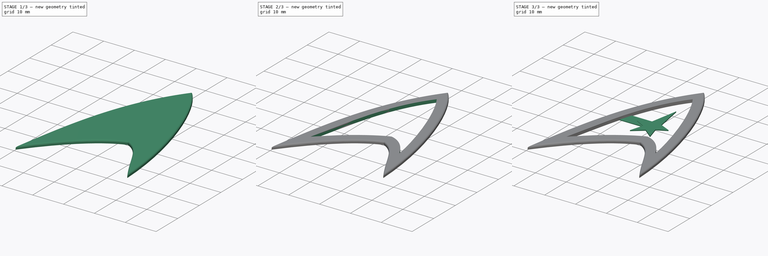
[diagram: build sequence overview — one tinted view per stage of 3, left to right]
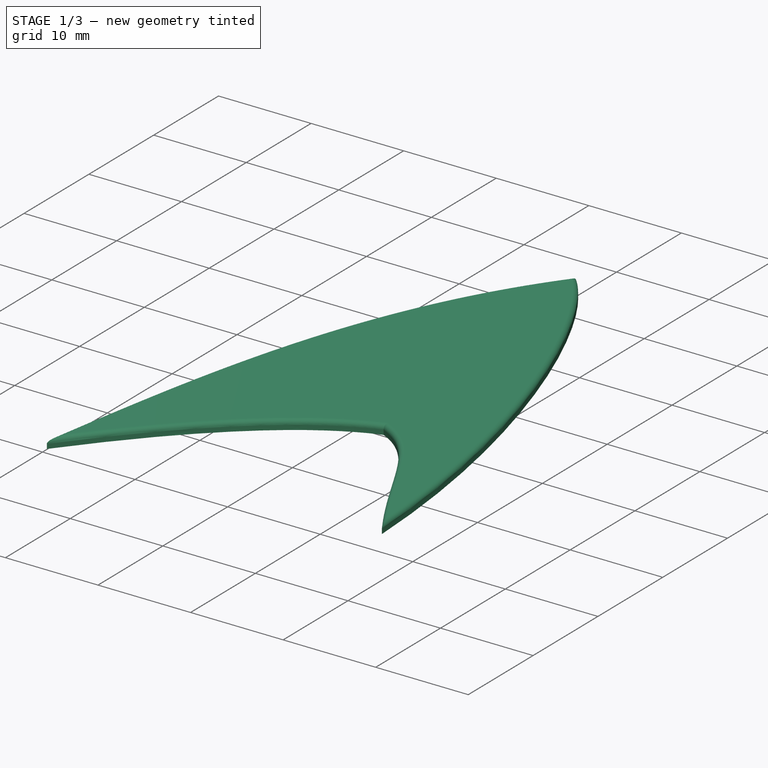
[diagram: stage 1 of 3 — iso view after this stage's code; geometry added in this stage tinted green]
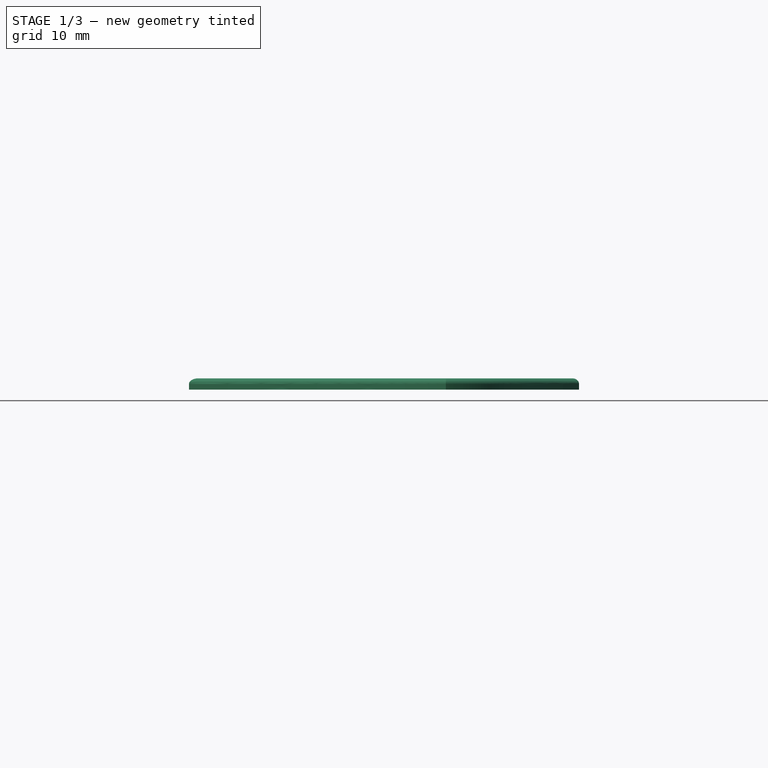
[diagram: stage 1 of 3 — front view after this stage's code; geometry added in this stage tinted green]
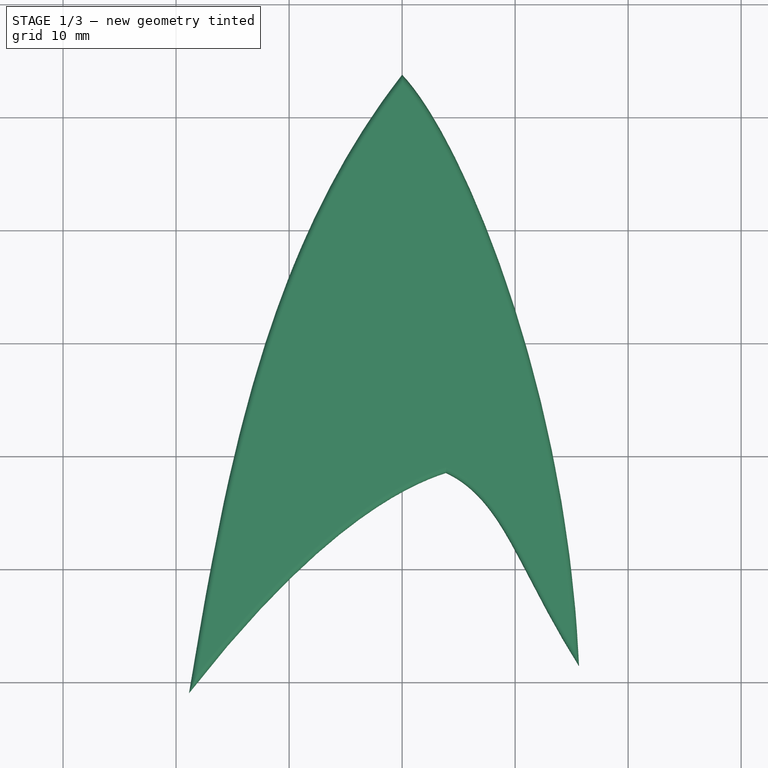
[diagram: stage 1 of 3 — top view after this stage's code; geometry added in this stage tinted green]
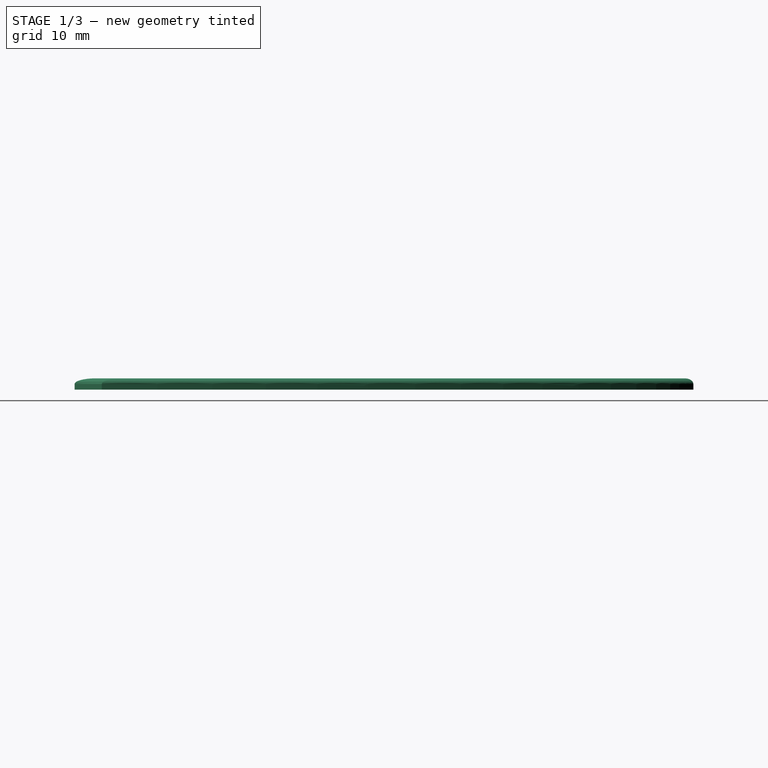
[diagram: stage 1 of 3 — right view after this stage's code; geometry added in this stage tinted green]
FCSTD DOCUMENT  (FreeCAD 0.19R24267 +99 (Git))
Label: StarTrekBookmark
License: All rights reserved
LicenseURL: http://en.wikipedia.org/wiki/All_rights_reserved
objects: Sketcher::SketchObject×4, PartDesign::Pad×3, PartDesign::Fillet×1, PartDesign::Pocket×1, PartDesign::Body×1
note: 15 computed .brp shape members not serialized (recipe doc carries the construction recipe); baked Part::Feature solids carry a one-line shape summary decoded from their .brp

FEATURE [Sketcher::SketchObject] Sketch001  label="OuterPerimeter"
  FullyConstrained = true
  MapMode = 5
  Support = -> [XY_Plane]
  sketch-geometry (28):
    g0-g3: Circle x4 (B-spline internal-alignment scaffolding for g4; pole/knot coordinates omitted)
    g4: BSplineCurve PolesCount=4 KnotsCount=2 Degree=3 IsPeriodic=0
    g5: GeomPoint X=0 Y=43.7882 Z=0
    g6: GeomPoint X=-18.8589 Y=-10.9564 Z=0
    g7-g10: Circle x4 (B-spline internal-alignment scaffolding for g11; pole/knot coordinates omitted)
    g11: BSplineCurve PolesCount=4 KnotsCount=2 Degree=3 IsPeriodic=0
    g12: GeomPoint X=-18.8589 Y=-10.9564 Z=0
    g13: GeomPoint X=3.87313 Y=8.54312 Z=0
    g14-g17: Circle x4 (B-spline internal-alignment scaffolding for g18; pole/knot coordinates omitted)
    g18: BSplineCurve PolesCount=4 KnotsCount=2 Degree=3 IsPeriodic=0
    g19: GeomPoint X=3.87313 Y=8.54312 Z=0
    g20: GeomPoint X=15.6562 Y=-8.55802 Z=0
    g21-g24: Circle x4 (B-spline internal-alignment scaffolding for g25; pole/knot coordinates omitted)
    g25: BSplineCurve PolesCount=4 KnotsCount=2 Degree=3 IsPeriodic=0
    g26: GeomPoint X=15.6562 Y=-8.55802 Z=0
    g27: GeomPoint X=0 Y=43.7882 Z=0
  constraints (20):
    c: InternalAlignment(g0-g3 -> g4) x4
    c: InternalAlignment(g5,g4)
    c: InternalAlignment(g6,g4)
    c: Coincident(g11,g4)
    c: InternalAlignment(g7-g10 -> g11) x4
    c: InternalAlignment(g12,g11)
    c: InternalAlignment(g13,g11)
    c: Coincident(g18,g11)
    c: InternalAlignment(g14-g17 -> g18) x4
    c: InternalAlignment(g19,g18)
    c: InternalAlignment(g20,g18)
    c: Coincident(g25,g18)
    c: Coincident(g25,g4)
    c: InternalAlignment(g21-g24 -> g25) x4
    c: InternalAlignment(g26,g25)
    c: InternalAlignment(g27,g25)
    c: Block(g4)
    c: Block(g11)
    c: Block(g18)
    c: Block(g25)
FEATURE [Sketcher::SketchObject] Sketch  label="InnerPerimeter"
  FullyConstrained = true
  MapMode = 5
  Support = -> [XY_Plane]
  sketch-geometry (28):
    g0-g3: Circle x4 (B-spline internal-alignment scaffolding for g4; pole/knot coordinates omitted)
    g4: BSplineCurve PolesCount=4 KnotsCount=2 Degree=3 IsPeriodic=0
    g5: GeomPoint X=0.119224 Y=38.3659 Z=0
    g6: GeomPoint X=-13.8537 Y=-0.111724 Z=0
    g7-g10: Circle x4 (B-spline internal-alignment scaffolding for g11; pole/knot coordinates omitted)
    g11: BSplineCurve PolesCount=4 KnotsCount=2 Degree=3 IsPeriodic=0
    g12: GeomPoint X=-13.8537 Y=-0.111724 Z=0
    g13: GeomPoint X=3.76886 Y=12.297 Z=0
    g14-g17: Circle x4 (B-spline internal-alignment scaffolding for g18; pole/knot coordinates omitted)
    g18: BSplineCurve PolesCount=4 KnotsCount=2 Degree=3 IsPeriodic=0
    g19: GeomPoint X=3.76886 Y=12.297 Z=0
    g20: GeomPoint X=11.475 Y=4.82406 Z=0
    g21-g24: Circle x4 (B-spline internal-alignment scaffolding for g25; pole/knot coordinates omitted)
    g25: BSplineCurve PolesCount=4 KnotsCount=2 Degree=3 IsPeriodic=0
    g26: GeomPoint X=11.475 Y=4.82406 Z=0
    g27: GeomPoint X=0.119224 Y=38.3659 Z=0
  constraints (20):
    c: InternalAlignment(g0-g3 -> g4) x4
    c: InternalAlignment(g5,g4)
    c: InternalAlignment(g6,g4)
    c: Coincident(g11,g4)
    c: InternalAlignment(g7-g10 -> g11) x4
    c: InternalAlignment(g12,g11)
    c: InternalAlignment(g13,g11)
    c: Coincident(g18,g11)
    c: InternalAlignment(g14-g17 -> g18) x4
    c: InternalAlignment(g19,g18)
    c: InternalAlignment(g20,g18)
    c: Coincident(g25,g18)
    c: Coincident(g25,g4)
    c: InternalAlignment(g21-g24 -> g25) x4
    c: InternalAlignment(g26,g25)
    c: InternalAlignment(g27,g25)
    c: Block(g4)
    c: Block(g11)
    c: Block(g18)
    c: Block(g25)
FEATURE [PartDesign::Pad] Pad
  Direction = (1,1,1)
  Length = 1
  Length2 = 100
  Profile = -> Sketch001
  Refine = true
  Type = 0
FEATURE [PartDesign::Fillet] Fillet
  Base = -> Pad [Face6]
  BaseFeature = -> Pad
  Radius = 0.5
  Refine = true
  SupportTransform = false
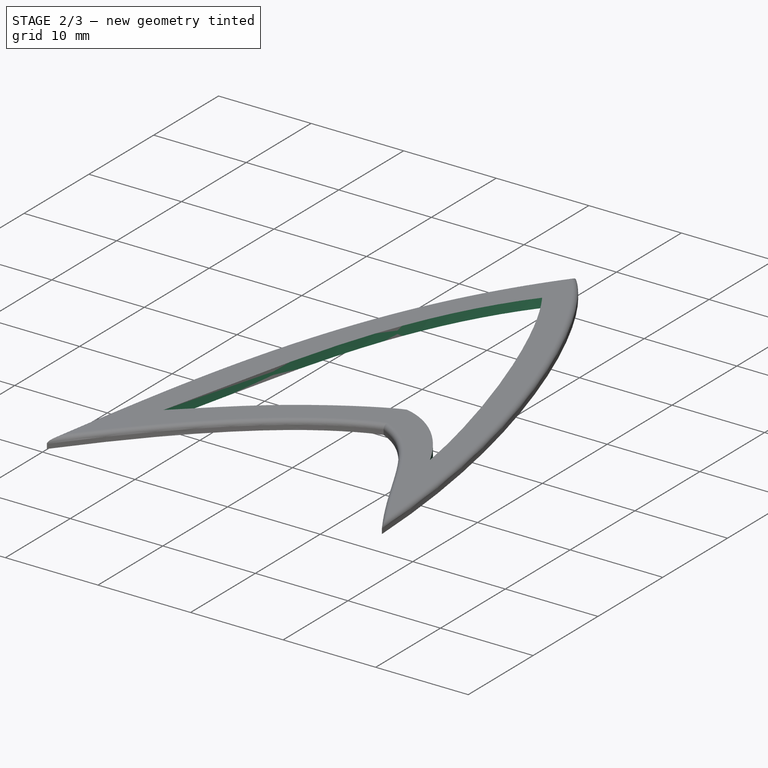
[diagram: stage 2 of 3 — iso view after this stage's code; geometry added in this stage tinted green]
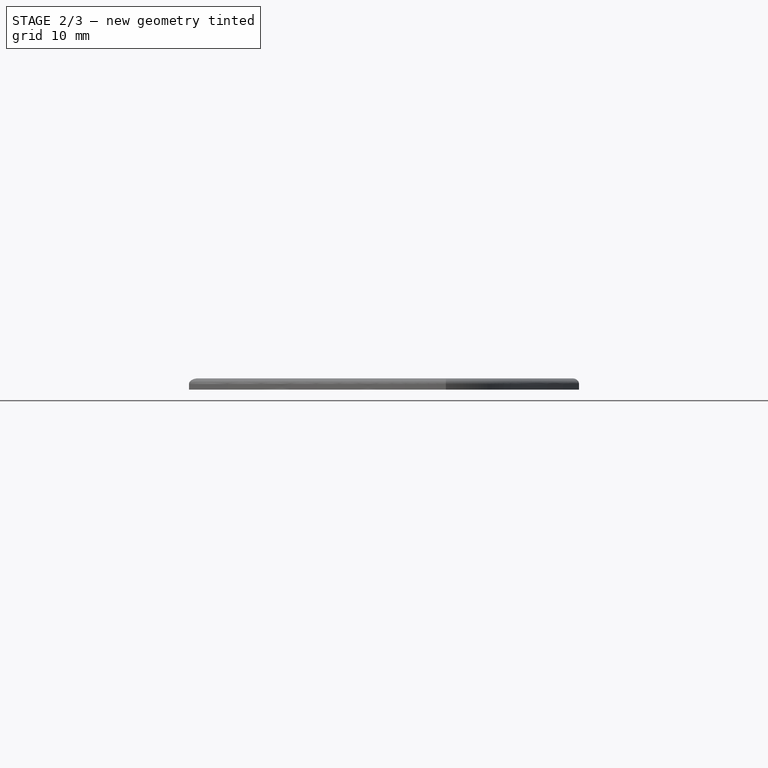
[diagram: stage 2 of 3 — front view after this stage's code; geometry added in this stage tinted green]
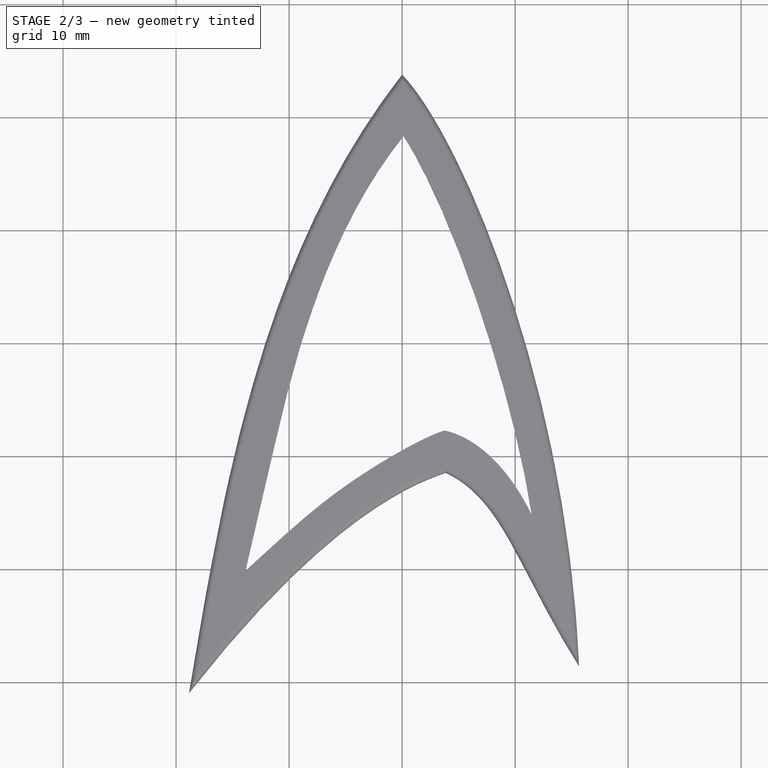
[diagram: stage 2 of 3 — top view after this stage's code; geometry added in this stage tinted green]
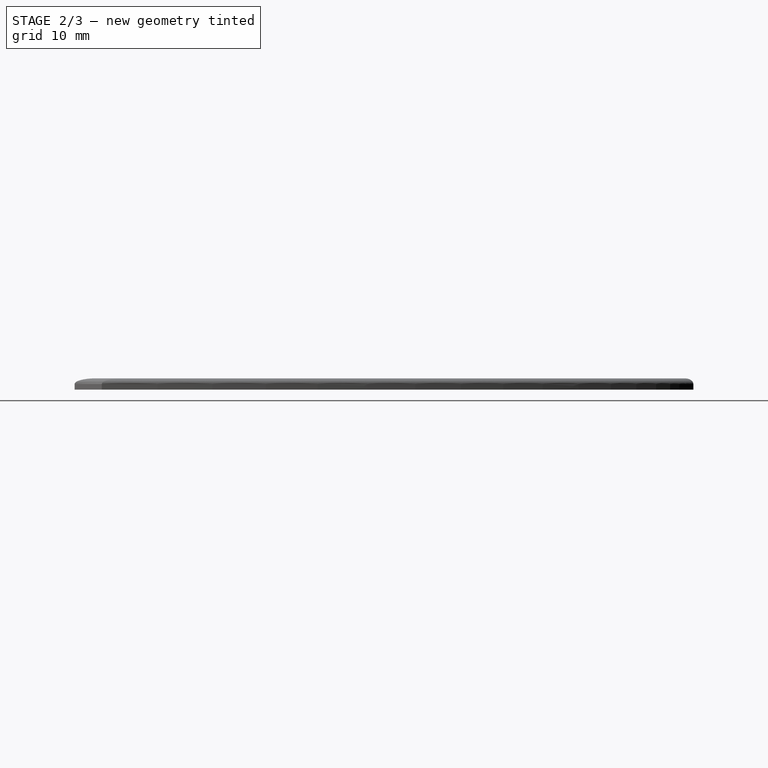
[diagram: stage 2 of 3 — right view after this stage's code; geometry added in this stage tinted green]
FEATURE [PartDesign::Pocket] Pocket
  BaseFeature = -> Fillet
  Length = 0
  Length2 = 100
  Profile = -> Sketch
  Refine = true
  Type = 3
  UpToFace = -> Fillet [Face8]
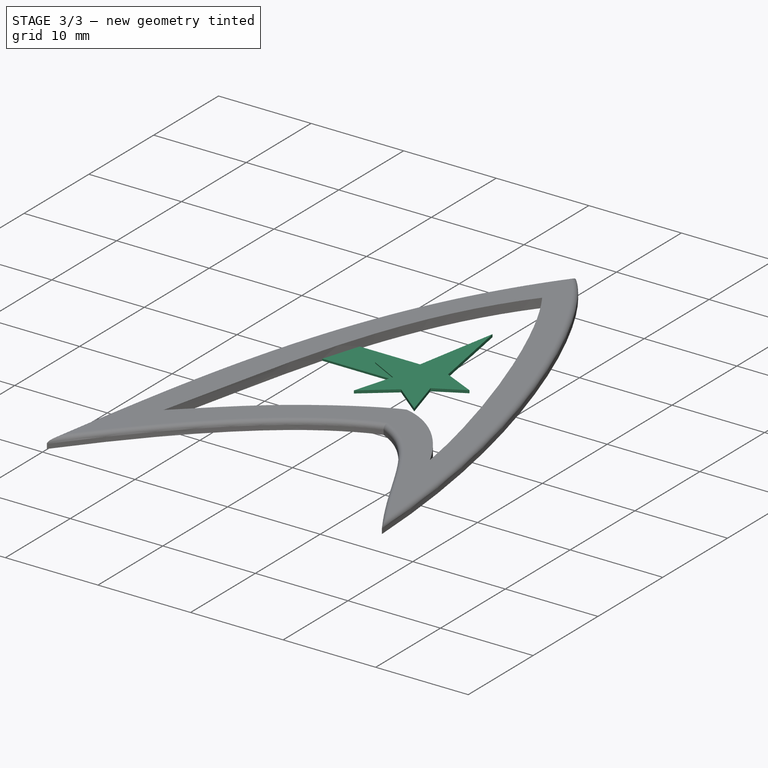
[diagram: stage 3 of 3 — iso view after this stage's code; geometry added in this stage tinted green]
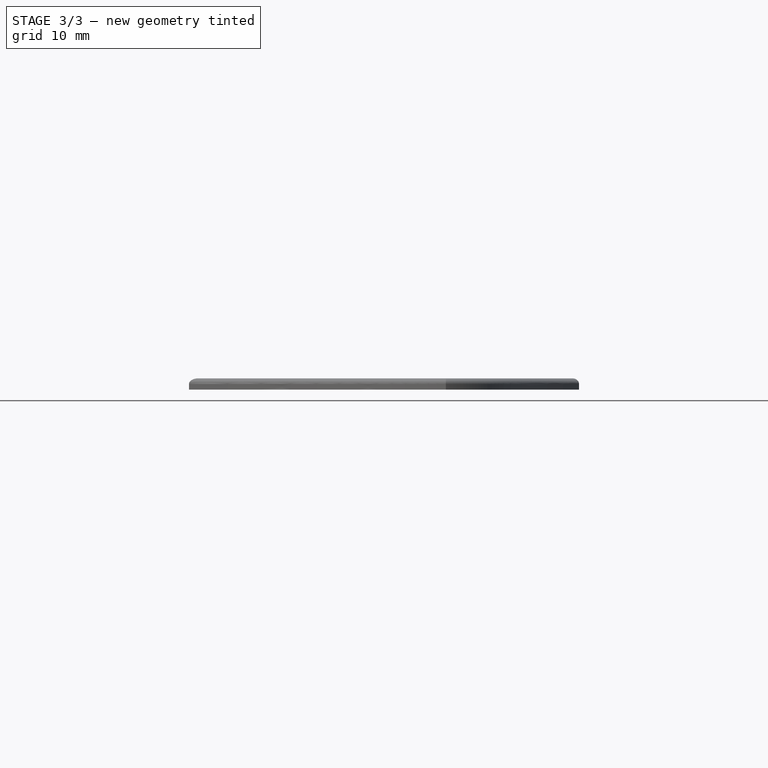
[diagram: stage 3 of 3 — front view after this stage's code; geometry added in this stage tinted green]
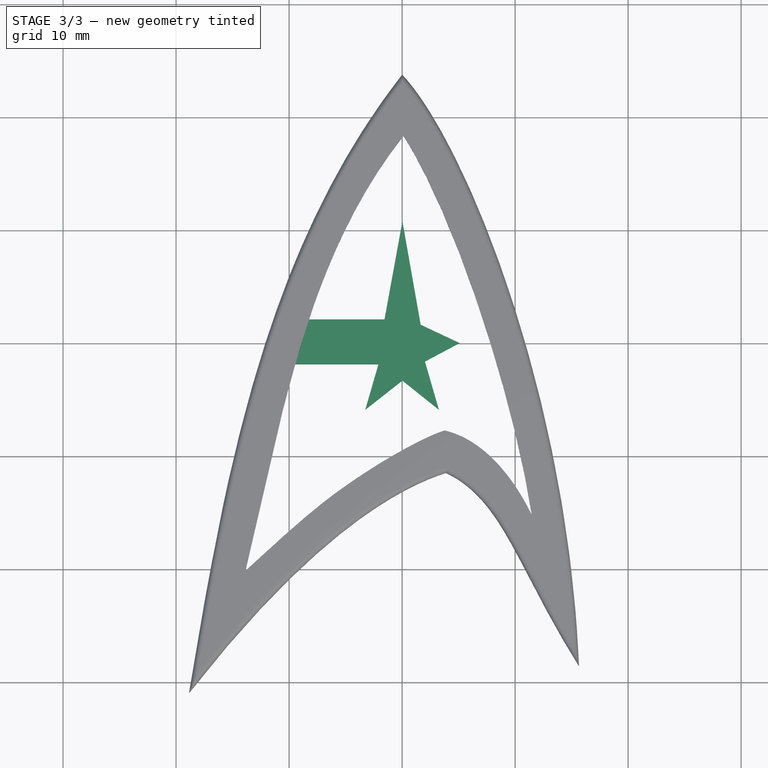
[diagram: stage 3 of 3 — top view after this stage's code; geometry added in this stage tinted green]
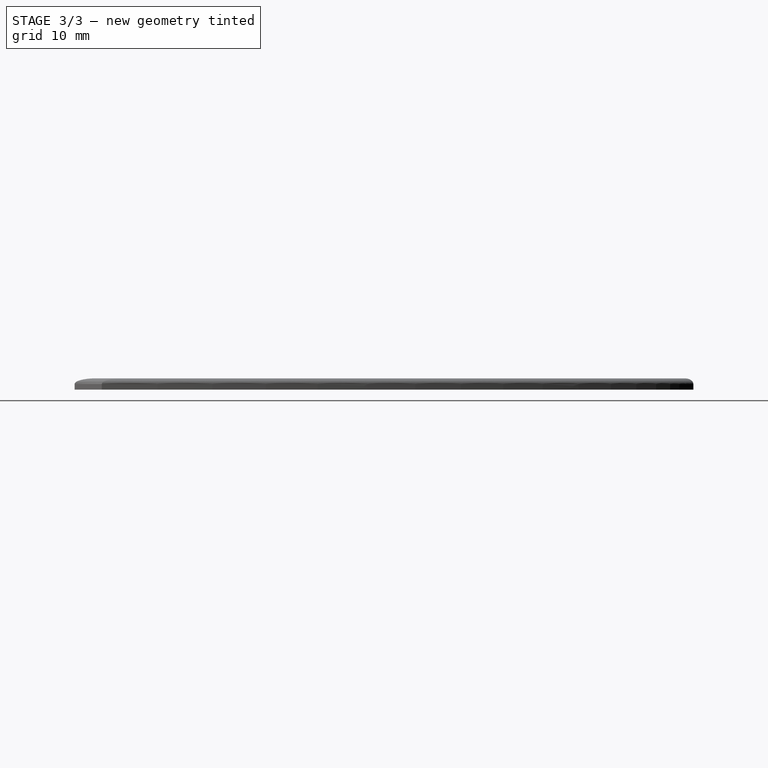
[diagram: stage 3 of 3 — right view after this stage's code; geometry added in this stage tinted green]
FEATURE [Sketcher::SketchObject] Sketch002  label="Star"
  FullyConstrained = true
  MapMode = 5
  Support = -> [XY_Plane]
  sketch-geometry (10):
    g0: LineSegment StartX=0.028302 StartY=30.8284 StartZ=0 EndX=-1.64428 EndY=21.6656 EndZ=0
    g1: LineSegment StartX=-1.64428 StartY=21.6656 StartZ=0 EndX=-5.09752 EndY=20.0411 EndZ=0
    g2: LineSegment StartX=-5.09752 StartY=20.0411 StartZ=0 EndX=-2.02446 EndY=18.4048 EndZ=0
    g3: LineSegment StartX=-2.02446 StartY=18.4048 StartZ=0 EndX=-3.26167 EndY=14.1344 EndZ=0
    g4: LineSegment StartX=-3.26167 StartY=14.1344 StartZ=0 EndX=0.028302 EndY=16.7206 EndZ=0
    g5: LineSegment StartX=0.028302 StartY=16.7206 StartZ=0 EndX=3.26167 EndY=14.1344 EndZ=0
    g6: LineSegment StartX=3.26167 StartY=14.1344 StartZ=0 EndX=2.02446 EndY=18.4048 EndZ=0
    g7: LineSegment StartX=2.02446 StartY=18.4048 StartZ=0 EndX=5.09752 EndY=20.0411 EndZ=0
    g8: LineSegment StartX=5.09752 StartY=20.0411 StartZ=0 EndX=1.64427 EndY=21.6656 EndZ=0
    g9: LineSegment StartX=1.64427 StartY=21.6656 StartZ=0 EndX=0.028302 EndY=30.8284 EndZ=0
  constraints (26):
    c: Coincident(g0,g9)
    c: Coincident(g4,g5)
    c: Coincident(g8,g9)
    c: Coincident(g0,g1)
    c: Coincident(g1,g2)
    c: Coincident(g7,g8)
    c: Coincident(g2,g3)
    c: Coincident(g6,g7)
    c: Coincident(g3,g4)
    c: Coincident(g5,g6)
    c: Vertical(g0,g4)
    c: Symmetric(g0,g8,g-2)
    c: Symmetric(g2,g6,g-2)
    c: Symmetric(g1,g7,g-2)
    c: Symmetric(g3,g5,g-2)
    c: DistanceX(g0,g3) = -3.28997
    c: DistanceY(g0,g3) = -16.694
    c: DistanceX(g0,g3) = -1.61739
    c: DistanceY(g0,g3) = -7.53118
    c: DistanceX(g1,g3) = 1.83585
    c: DistanceY(g1,g3) = -5.90667
    c: DistanceX(g2,g3) = -1.23721
    c: DistanceY(g2,g3) = -4.27036
    c: DistanceX(g0) = 0.028302
    c: DistanceY(g0) = 30.8284
    c: DistanceY(g4) = 16.7206
FEATURE [Sketcher::SketchObject] Sketch003  label="bridge"
  FullyConstrained = true
  MapMode = 5
  Support = -> [XY_Plane]
  sketch-geometry (4):
    g0: LineSegment StartX=-10.2 StartY=18.1472 StartZ=0 EndX=0 EndY=18.1472 EndZ=0
    g1: LineSegment StartX=0 StartY=18.1472 StartZ=0 EndX=0 EndY=22.1442 EndZ=0
    g2: LineSegment StartX=0 StartY=22.1442 StartZ=0 EndX=-10.2 EndY=22.1442 EndZ=0
    g3: LineSegment StartX=-10.2 StartY=22.1442 StartZ=0 EndX=-10.2 EndY=18.1472 EndZ=0
  constraints (12):
    c: Coincident(g0,g1)
    c: Coincident(g1,g2)
    c: Coincident(g2,g3)
    c: Coincident(g3,g0)
    c: Horizontal(g0)
    c: Horizontal(g2)
    c: Vertical(g1)
    c: Vertical(g3)
    c: PointOnObject(g1,g-2)
    c: DistanceY(g1) = 22.1442
    c: DistanceY(g0) = 18.1472
    c: DistanceX(g2,g2) = 10.2
FEATURE [PartDesign::Pad] Pad001
  BaseFeature = -> Pocket
  Direction = (1,1,1)
  Length = 0.2
  Length2 = 100
  Profile = -> Sketch003
  Refine = true
  Type = 0
FEATURE [PartDesign::Pad] Pad002
  BaseFeature = -> Pad001
  Direction = (1,1,1)
  Length = 0.3
  Length2 = 100
  Profile = -> Sketch002
  Refine = true
  Type = 0
FEATURE [PartDesign::Body] Body
  Group = -> [Sketch001,Sketch,Pad,Fillet,Pocket,Sketch002,Sketch003,Pad001,Pad002]
  Origin = -> Origin
  Tip = -> Pad002
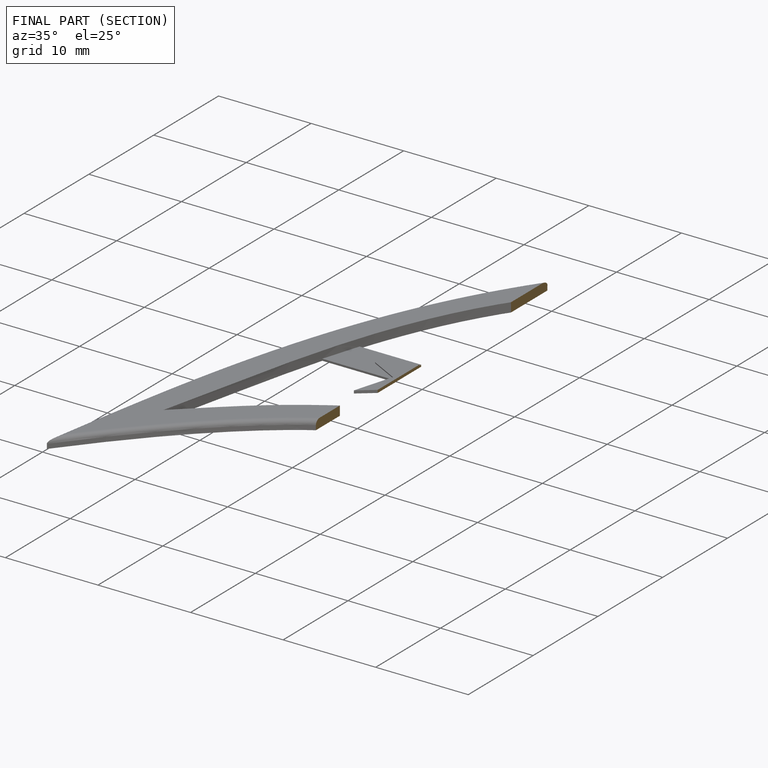
[diagram: finished part — half-section view (interior)]
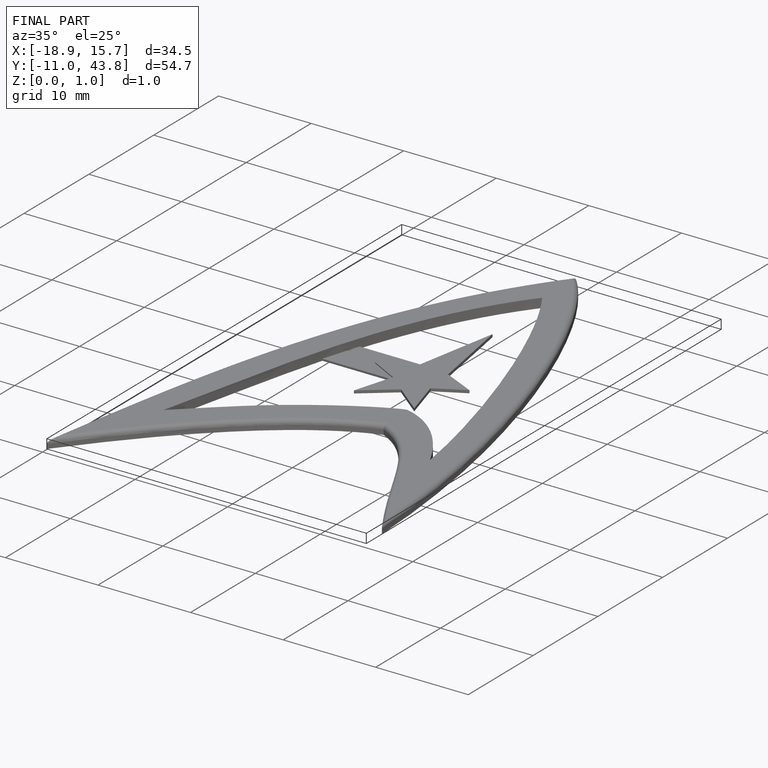
[diagram: finished part — iso view with bounding-box wireframe]
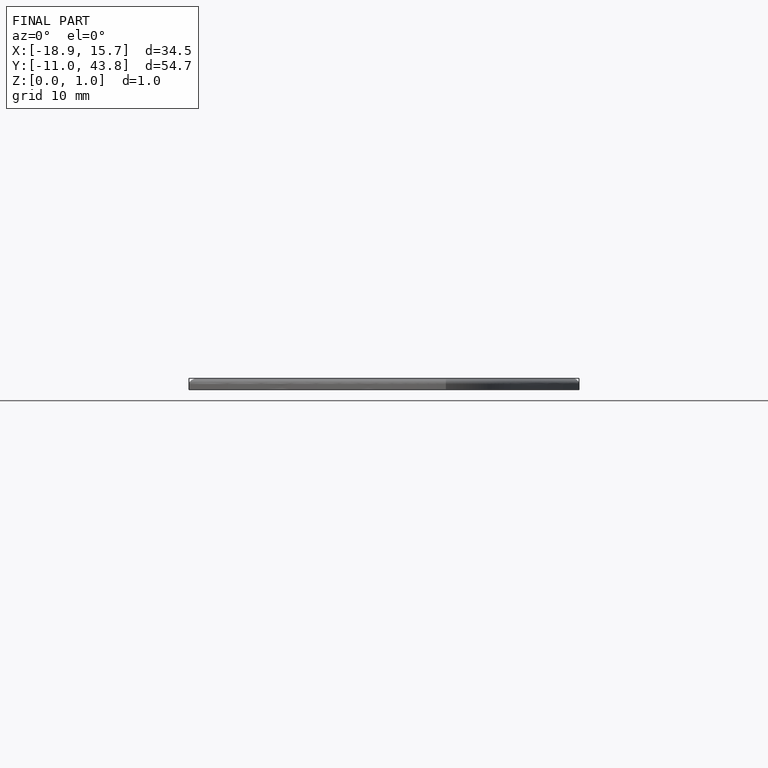
[diagram: finished part — front view with bounding-box wireframe]
